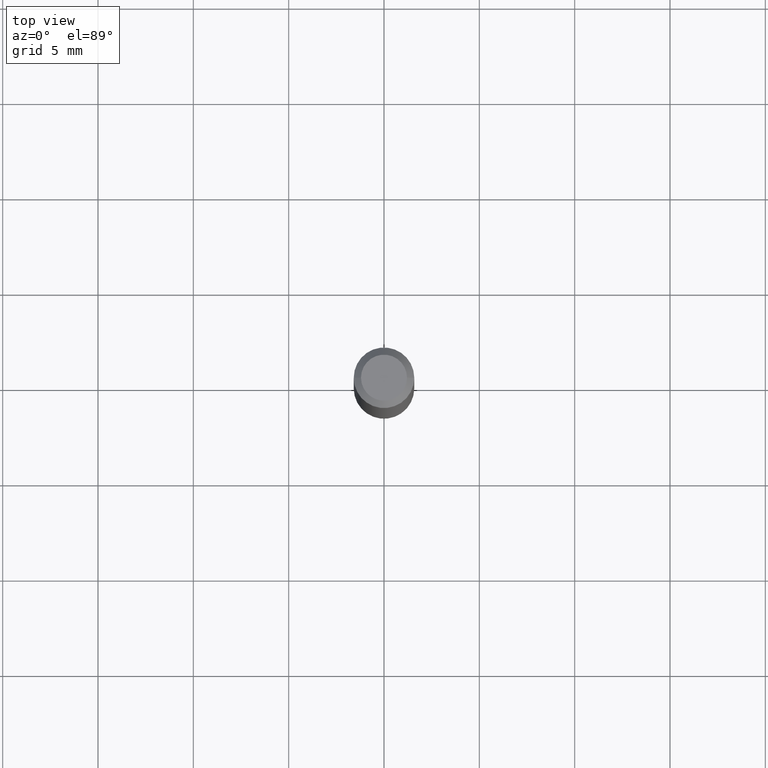
[diagram: clean part render]
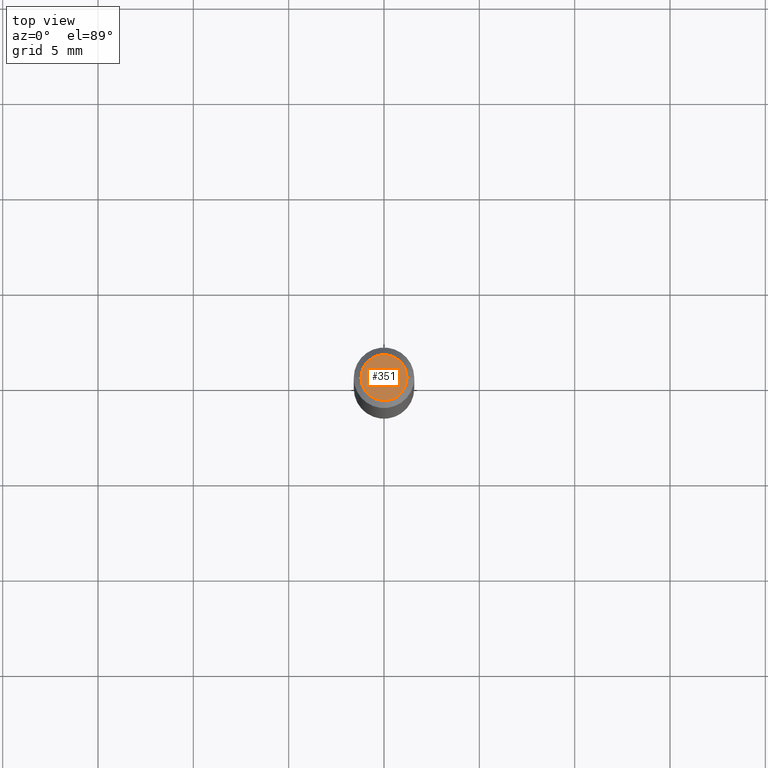
[diagram: same view with one face highlighted and labeled with its STEP entity id]
A machine part, top view. The second image highlights one B-rep face of the part: STEP entity #351.
In plain terms, the highlighted planar face has unit normal (0, -0, -1).
Its self-contained STEP definition (entity closure, byte-faithful):
#14 = CIRCLE ( 'NONE', #221, 0.04750000000000000749 ) ;
#23 = EDGE_CURVE ( 'NONE', #372, #53, #14, .T. ) ;
#28 = EDGE_CURVE ( 'NONE', #53, #372, #118, .T. ) ;
#53 = VERTEX_POINT ( 'NONE', #379 ) ;
#94 = CARTESIAN_POINT ( 'NONE',  ( -6.680649051745406845E-45, 9.538196290434862081E-31, 2.731847993664263218E-16 ) ) ;
#118 = CIRCLE ( 'NONE', #212, 0.04750000000000000749 ) ;
#136 = CARTESIAN_POINT ( 'NONE',  ( -6.680649051745406845E-45, 9.538196290434862081E-31, 2.731847993664263218E-16 ) ) ;
#138 = CARTESIAN_POINT ( 'NONE',  ( -0.04750000000000000749, 3.578768372314221353E-16, 2.731847993664239060E-16 ) ) ;
#150 = DIRECTION ( 'NONE',  ( -1.000000000000000000, 6.982962677686265922E-15, -4.876176775795935793E-29 ) ) ;
#186 = FACE_OUTER_BOUND ( 'NONE', #332, .T. ) ;
#208 = DIRECTION ( 'NONE',  ( -2.445468806185136597E-29, 3.491481338843145583E-15, 1.000000000000000000 ) ) ;
#212 = AXIS2_PLACEMENT_3D ( 'NONE', #94, #208, #449 ) ;
#221 = AXIS2_PLACEMENT_3D ( 'NONE', #136, #258, #419 ) ;
#232 = AXIS2_PLACEMENT_3D ( 'NONE', #390, #355, #150 ) ;
#258 = DIRECTION ( 'NONE',  ( -2.445468806185136597E-29, 3.491481338843145583E-15, 1.000000000000000000 ) ) ;
#323 = PLANE ( 'NONE',  #232 ) ;
#332 = EDGE_LOOP ( 'NONE', ( #480, #516 ) ) ;
#351 = ADVANCED_FACE ( 'NONE', ( #186 ), #323, .F. ) ;
#355 = DIRECTION ( 'NONE',  ( 2.438088387897960049E-29, -3.491481338843145188E-15, -1.000000000000000000 ) ) ;
#372 = VERTEX_POINT ( 'NONE', #138 ) ;
#379 = CARTESIAN_POINT ( 'NONE',  ( 0.04750000000000000749, -4.035134999187568762E-16, 2.731847993664288856E-16 ) ) ;
#390 = CARTESIAN_POINT ( 'NONE',  ( 3.316907271900976589E-16, 0.04750000000000000749, -2.925296391183627249E-17 ) ) ;
#419 = DIRECTION ( 'NONE',  ( 1.000000000000000000, -6.982962677686266711E-15, 4.852736867747365086E-29 ) ) ;
#449 = DIRECTION ( 'NONE',  ( 1.000000000000000000, -6.982962677686266711E-15, 4.852736867747365086E-29 ) ) ;
#480 = ORIENTED_EDGE ( 'NONE', *, *, #23, .T. ) ;
#516 = ORIENTED_EDGE ( 'NONE', *, *, #28, .T. ) ;